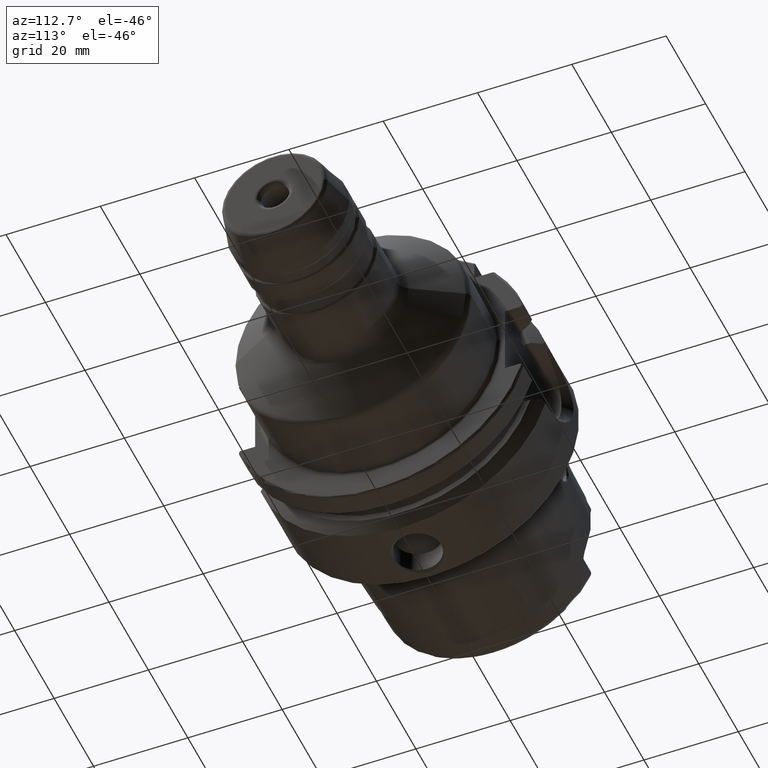
[diagram: clean part render]
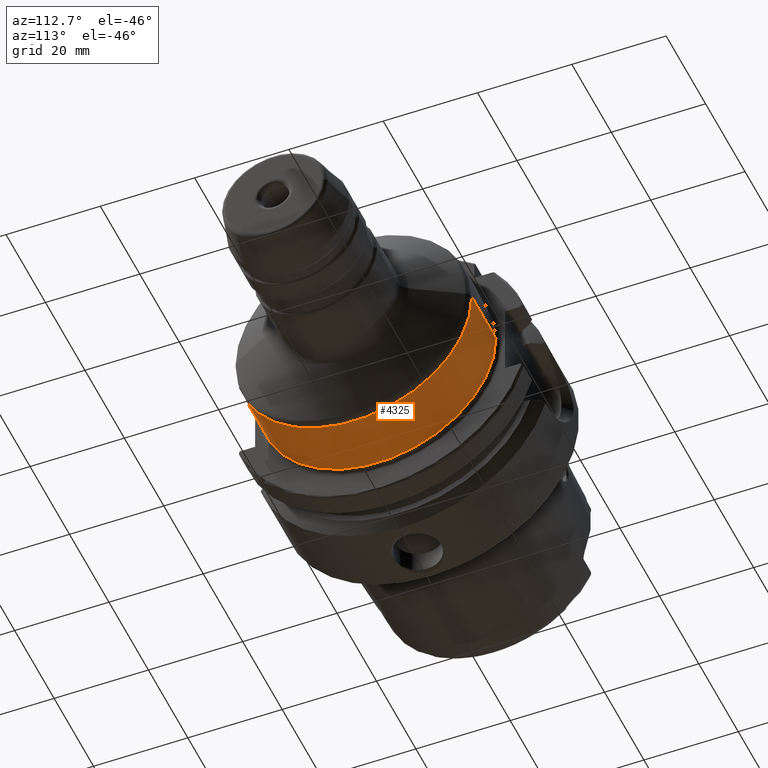
[diagram: same view with one face highlighted and labeled with its STEP entity id]
A machine part, auxiliary view. The second image highlights one B-rep face of the part: STEP entity #4325.
In plain terms, the highlighted cylindrical surface (partial cylindrical patch) has radius 25 mm, axis along (1, 0, 0).
Its self-contained STEP definition (entity closure, byte-faithful):
#729=CARTESIAN_POINT('',(3.920577136594E1,0.E0,0.E0));
#730=DIRECTION('',(-1.E0,0.E0,0.E0));
#731=DIRECTION('',(0.E0,1.E0,0.E0));
#732=AXIS2_PLACEMENT_3D('',#729,#730,#731);
#734=DIRECTION('',(-1.E0,0.E0,-8.200930227538E-12));
#735=VECTOR('',#734,1.220577136594E1);
#736=CARTESIAN_POINT('',(3.920577136594E1,2.5E1,1.007300674313E-10));
#737=LINE('',#736,#735);
#738=CARTESIAN_POINT('',(2.7E1,0.E0,0.E0));
#739=DIRECTION('',(1.E0,0.E0,0.E0));
#740=DIRECTION('',(0.E0,-1.E0,0.E0));
#741=AXIS2_PLACEMENT_3D('',#738,#739,#740);
#743=DIRECTION('',(-1.E0,0.E0,8.200700928203E-12));
#744=VECTOR('',#743,1.220577136594E1);
#745=CARTESIAN_POINT('',(3.920577136594E1,-2.5E1,-1.007308651290E-10));
#746=LINE('',#745,#744);
#3249=CARTESIAN_POINT('',(2.7E1,2.5E1,0.E0));
#3250=CARTESIAN_POINT('',(2.7E1,-2.5E1,0.E0));
#3251=VERTEX_POINT('',#3249);
#3252=VERTEX_POINT('',#3250);
#3253=CARTESIAN_POINT('',(3.920577136594E1,-2.5E1,0.E0));
#3254=CARTESIAN_POINT('',(3.920577136594E1,2.5E1,0.E0));
#3255=VERTEX_POINT('',#3253);
#3256=VERTEX_POINT('',#3254);
#4312=CARTESIAN_POINT('',(0.E0,0.E0,0.E0));
#4313=DIRECTION('',(1.E0,0.E0,0.E0));
#4314=DIRECTION('',(0.E0,-1.E0,0.E0));
#4315=AXIS2_PLACEMENT_3D('',#4312,#4313,#4314);
#4316=CYLINDRICAL_SURFACE('',#4315,2.5E1);
#4318=ORIENTED_EDGE('',*,*,#4317,.F.);
#4319=ORIENTED_EDGE('',*,*,#4307,.T.);
#4321=ORIENTED_EDGE('',*,*,#4320,.F.);
#4322=ORIENTED_EDGE('',*,*,#4303,.F.);
#4323=EDGE_LOOP('',(#4318,#4319,#4321,#4322));
#4324=FACE_OUTER_BOUND('',#4323,.F.);
#4325=ADVANCED_FACE('',(#4324),#4316,.T.);
#733=CIRCLE('',#732,2.5E1);
#742=CIRCLE('',#741,2.5E1);
#4303=EDGE_CURVE('',#3255,#3252,#746,.T.);
#4307=EDGE_CURVE('',#3256,#3251,#737,.T.);
#4317=EDGE_CURVE('',#3256,#3255,#733,.T.);
#4320=EDGE_CURVE('',#3252,#3251,#742,.T.);